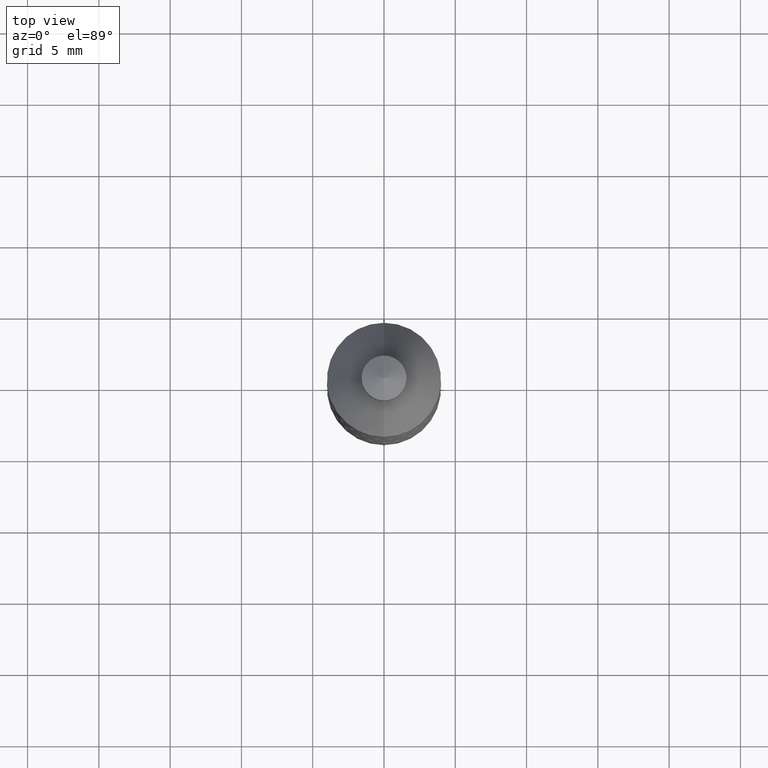
[diagram: clean part render]
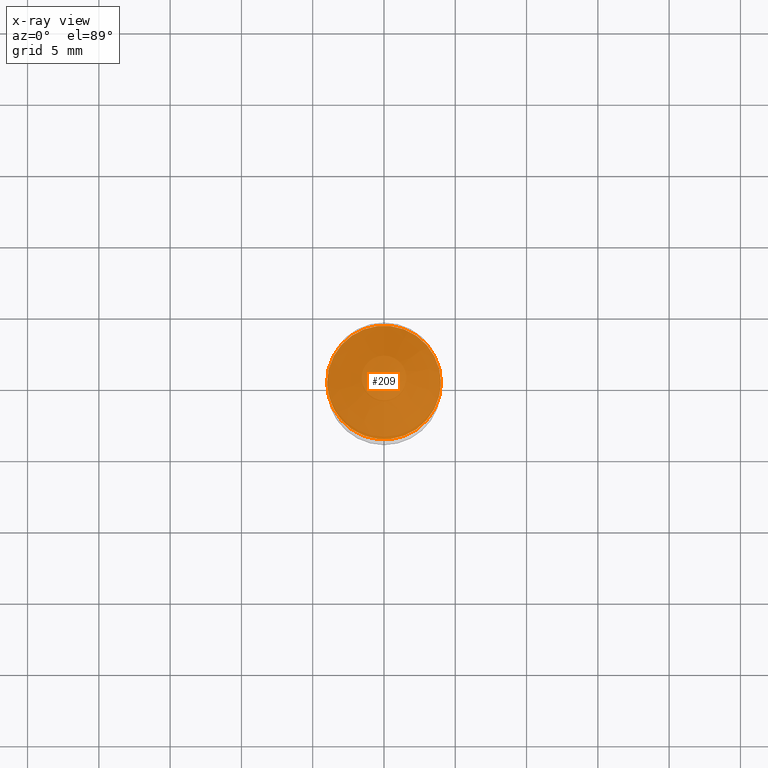
[diagram: x-ray — body ghosted, one internal face saturated and labeled with its STEP entity id]
A machine part, top view, then the same camera in x-ray: the body is ghosted and one INTERNAL B-rep face — a face not visible from any outside direction — is saturated and labeled: STEP entity #209.
In plain terms, the highlighted planar face has unit normal (-0, 0, 1).
Its self-contained STEP definition (entity closure, byte-faithful):
#34 = CARTESIAN_POINT ( 'NONE',  ( -5.380031373607300737E-30, 7.681258945454921386E-16, 0.2200000000000000011 ) ) ;
#50 = DIRECTION ( 'NONE',  ( -2.445468806185136597E-29, 3.491481338843145583E-15, 1.000000000000000000 ) ) ;
#91 = DIRECTION ( 'NONE',  ( 1.000000000000000000, -6.982962677686266711E-15, 0.000000000000000000 ) ) ;
#96 = DIRECTION ( 'NONE',  ( -1.000000000000000000, 6.982962677686265922E-15, -4.876176775795935793E-29 ) ) ;
#149 = FACE_OUTER_BOUND ( 'NONE', #226, .T. ) ;
#155 = DIRECTION ( 'NONE',  ( -2.438088387897960049E-29, 3.491481338843145188E-15, 1.000000000000000000 ) ) ;
#209 = ADVANCED_FACE ( 'NONE', ( #149 ), #366, .T. ) ;
#220 = ORIENTED_EDGE ( 'NONE', *, *, #439, .T. ) ;
#226 = EDGE_LOOP ( 'NONE', ( #516, #220 ) ) ;
#232 = CIRCLE ( 'NONE', #298, 0.1570000000000000007 ) ;
#298 = AXIS2_PLACEMENT_3D ( 'NONE', #34, #359, #91 ) ;
#323 = AXIS2_PLACEMENT_3D ( 'NONE', #671, #50, #523 ) ;
#359 = DIRECTION ( 'NONE',  ( -2.445468806185136597E-29, 3.491481338843145583E-15, 1.000000000000000000 ) ) ;
#366 = PLANE ( 'NONE',  #488 ) ;
#374 = CIRCLE ( 'NONE', #323, 0.1570000000000000007 ) ;
#425 = CARTESIAN_POINT ( 'NONE',  ( 0.1570000000000000007, -3.281992458512516935E-16, 0.2200000000000000011 ) ) ;
#439 = EDGE_CURVE ( 'NONE', #607, #564, #232, .T. ) ;
#473 = EDGE_CURVE ( 'NONE', #564, #607, #374, .T. ) ;
#488 = AXIS2_PLACEMENT_3D ( 'NONE', #580, #155, #96 ) ;
#516 = ORIENTED_EDGE ( 'NONE', *, *, #473, .T. ) ;
#523 = DIRECTION ( 'NONE',  ( 1.000000000000000000, -6.982962677686266711E-15, 0.000000000000000000 ) ) ;
#532 = CARTESIAN_POINT ( 'NONE',  ( -0.1570000000000000007, 1.846066334360354805E-15, 0.2200000000000000011 ) ) ;
#564 = VERTEX_POINT ( 'NONE', #425 ) ;
#580 = CARTESIAN_POINT ( 'NONE',  ( -5.380031373607300737E-30, 7.681258945454921386E-16, 0.2200000000000000011 ) ) ;
#607 = VERTEX_POINT ( 'NONE', #532 ) ;
#671 = CARTESIAN_POINT ( 'NONE',  ( -5.380031373607300737E-30, 7.681258945454921386E-16, 0.2200000000000000011 ) ) ;